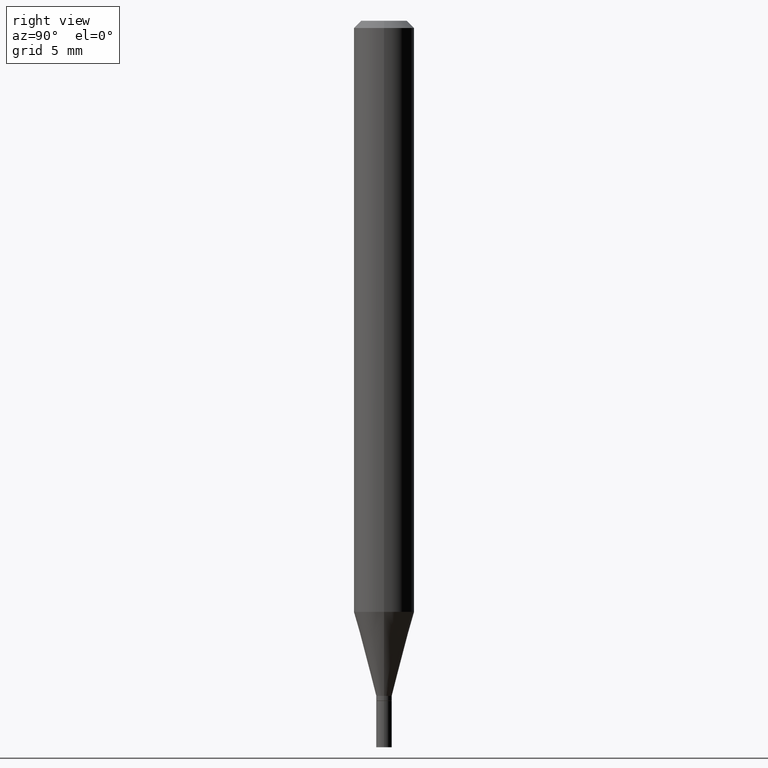
[diagram: clean part render]
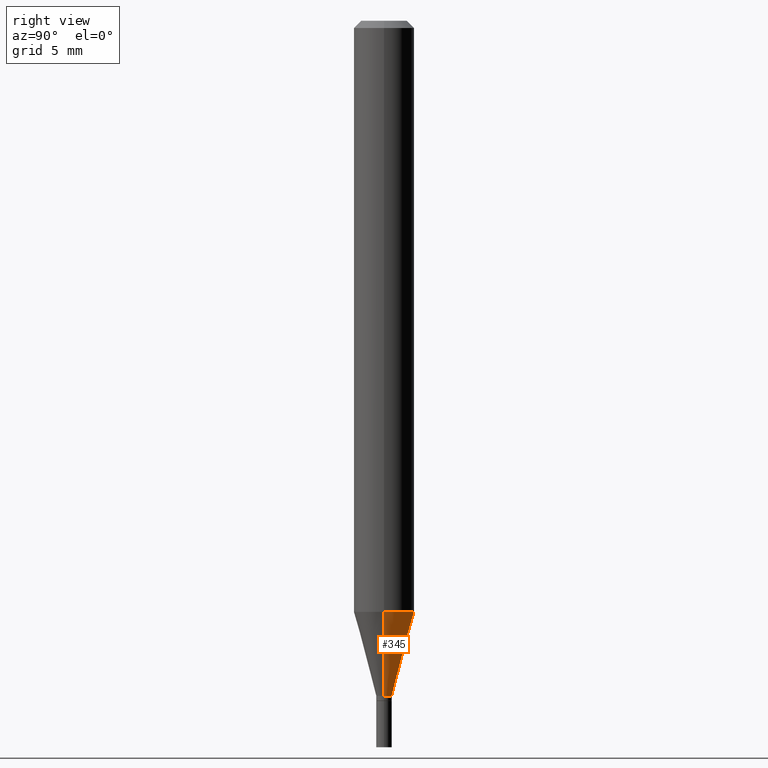
[diagram: same view with one face highlighted and labeled with its STEP entity id]
A machine part, right view. The second image highlights one B-rep face of the part: STEP entity #345.
In plain terms, the highlighted conical surface has half-angle 15 deg.
Its self-contained STEP definition (entity closure, byte-faithful):
#6 = CARTESIAN_POINT ( 'NONE',  ( -0.01599999999999992401, -4.753438148625730668E-15, -1.394000000000000128 ) ) ;
#10 = DIRECTION ( 'NONE',  ( 0.2588190451025213501, 1.565188264969621968E-15, 0.9659258262890682012 ) ) ;
#15 = CARTESIAN_POINT ( 'NONE',  ( -0.01599999999999992401, -4.285280493868398751E-15, -1.394000000000000128 ) ) ;
#38 = DIRECTION ( 'NONE',  ( -2.445468806185136597E-29, 3.491481338843145583E-15, 1.000000000000000000 ) ) ;
#43 = EDGE_CURVE ( 'NONE', #128, #331, #152, .T. ) ;
#50 = CIRCLE ( 'NONE', #373, 0.01599999999999992401 ) ;
#59 = DIRECTION ( 'NONE',  ( -2.445468806185136597E-29, 3.491481338843145583E-15, 1.000000000000000000 ) ) ;
#62 = EDGE_CURVE ( 'NONE', #109, #240, #196, .T. ) ;
#71 = AXIS2_PLACEMENT_3D ( 'NONE', #149, #38, #357 ) ;
#91 = ORIENTED_EDGE ( 'NONE', *, *, #460, .F. ) ;
#109 = VERTEX_POINT ( 'NONE', #15 ) ;
#127 = DIRECTION ( 'NONE',  ( 1.000000000000000000, -6.982962677686244622E-15, 0.000000000000000000 ) ) ;
#128 = VERTEX_POINT ( 'NONE', #410 ) ;
#129 = CARTESIAN_POINT ( 'NONE',  ( 3.408983515822080869E-29, -4.867124986347346010E-15, -1.394000000000000128 ) ) ;
#133 = CIRCLE ( 'NONE', #287, 0.06250000000000000000 ) ;
#144 = FACE_OUTER_BOUND ( 'NONE', #404, .T. ) ;
#149 = CARTESIAN_POINT ( 'NONE',  ( 3.408983515822080869E-29, -4.867124986347346010E-15, -1.394000000000000128 ) ) ;
#151 = ORIENTED_EDGE ( 'NONE', *, *, #43, .F. ) ;
#152 = LINE ( 'NONE', #449, #191 ) ;
#173 = EDGE_CURVE ( 'NONE', #128, #109, #50, .T. ) ;
#178 = DIRECTION ( 'NONE',  ( 1.000000000000000000, -6.982962677686262766E-15, 0.000000000000000000 ) ) ;
#191 = VECTOR ( 'NONE', #10, 39.37007874015747433 ) ;
#196 = LINE ( 'NONE', #6, #263 ) ;
#219 = CARTESIAN_POINT ( 'NONE',  ( 2.984595972587221379E-29, -4.261212048961128661E-15, -1.220459637448047641 ) ) ;
#240 = VERTEX_POINT ( 'NONE', #343 ) ;
#263 = VECTOR ( 'NONE', #445, 39.37007874015747433 ) ;
#279 = ORIENTED_EDGE ( 'NONE', *, *, #62, .T. ) ;
#283 = ORIENTED_EDGE ( 'NONE', *, *, #173, .T. ) ;
#287 = AXIS2_PLACEMENT_3D ( 'NONE', #219, #393, #178 ) ;
#331 = VERTEX_POINT ( 'NONE', #395 ) ;
#343 = CARTESIAN_POINT ( 'NONE',  ( -0.06250000000000000000, -3.817122839111066834E-15, -1.220459637448047641 ) ) ;
#345 = ADVANCED_FACE ( 'NONE', ( #144 ), #433, .T. ) ;
#357 = DIRECTION ( 'NONE',  ( 1.000000000000000000, -6.982962677686244622E-15, 0.000000000000000000 ) ) ;
#373 = AXIS2_PLACEMENT_3D ( 'NONE', #129, #59, #127 ) ;
#393 = DIRECTION ( 'NONE',  ( -2.445468806185136597E-29, 3.491481338843145583E-15, 1.000000000000000000 ) ) ;
#395 = CARTESIAN_POINT ( 'NONE',  ( 0.06250000000000000000, -4.697647216316520331E-15, -1.220459637448047641 ) ) ;
#404 = EDGE_LOOP ( 'NONE', ( #283, #279, #91, #151 ) ) ;
#410 = CARTESIAN_POINT ( 'NONE',  ( 0.01599999999999992401, -4.978852389190325393E-15, -1.394000000000000128 ) ) ;
#433 = CONICAL_SURFACE ( 'NONE', #71, 0.01599999999999992401, 0.2617993877991500740 ) ;
#445 = DIRECTION ( 'NONE',  ( -0.2588190451025213501, 5.211531920934551042E-15, 0.9659258262890682012 ) ) ;
#449 = CARTESIAN_POINT ( 'NONE',  ( 0.01599999999999992401, -4.978852389190325393E-15, -1.394000000000000128 ) ) ;
#460 = EDGE_CURVE ( 'NONE', #331, #240, #133, .T. ) ;